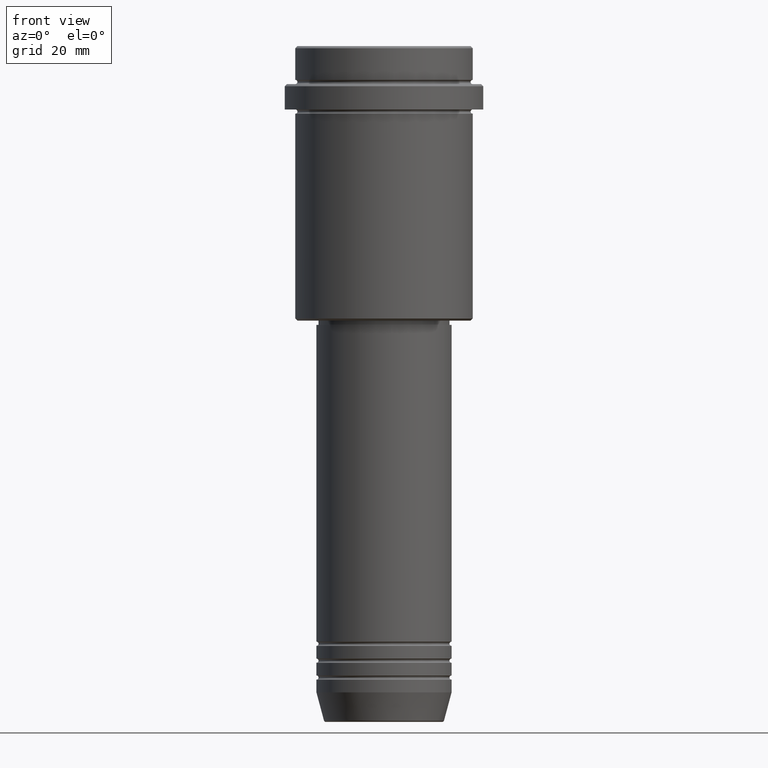
[diagram: clean part render]
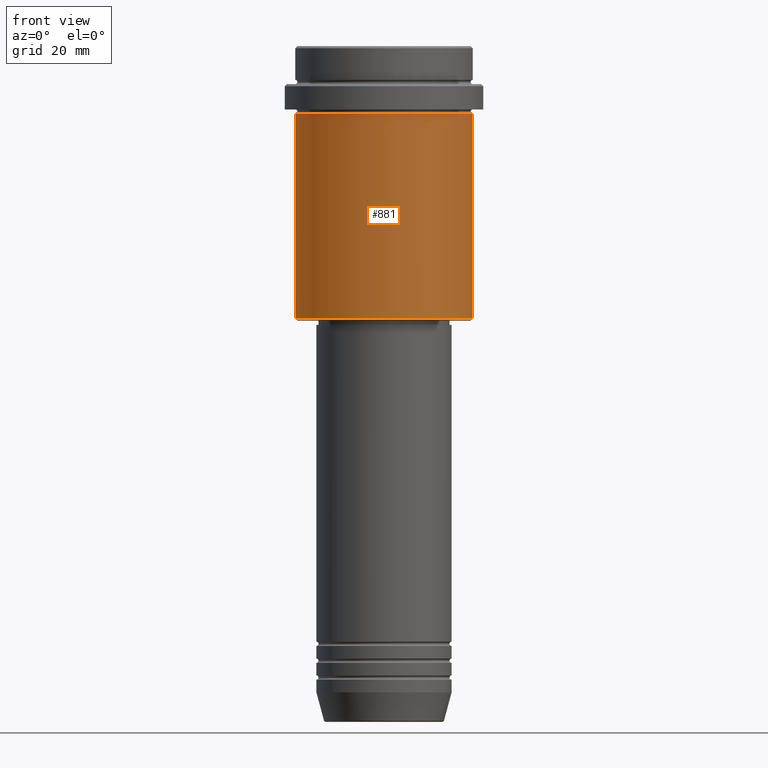
[diagram: same view with one face highlighted and labeled with its STEP entity id]
A machine part, front view. The second image highlights one B-rep face of the part: STEP entity #881.
In plain terms, the highlighted cylindrical surface (partial cylindrical patch) has radius 21 mm, axis along (-0, -0, 1).
Its self-contained STEP definition (entity closure, byte-faithful):
#15 = VERTEX_POINT ( 'NONE', #480 ) ;
#53 = EDGE_CURVE ( 'NONE', #15, #1003, #458, .T. ) ;
#122 = ORIENTED_EDGE ( 'NONE', *, *, #1103, .T. ) ;
#126 = EDGE_LOOP ( 'NONE', ( #777, #1397, #122, #266 ) ) ;
#135 = CARTESIAN_POINT ( 'NONE',  ( 0.000000000000000000, 0.000000000000000000, 0.000000000000000000 ) ) ;
#213 = CARTESIAN_POINT ( 'NONE',  ( 0.000000000000000000, 0.000000000000000000, -16.00000000000000355 ) ) ;
#232 = CIRCLE ( 'NONE', #421, 21.00000000000000000 ) ;
#244 = CYLINDRICAL_SURFACE ( 'NONE', #1171, 21.00000000000000000 ) ;
#266 = ORIENTED_EDGE ( 'NONE', *, *, #53, .F. ) ;
#270 = DIRECTION ( 'NONE',  ( -0.000000000000000000, -0.000000000000000000, 1.000000000000000000 ) ) ;
#293 = LINE ( 'NONE', #748, #534 ) ;
#327 = VERTEX_POINT ( 'NONE', #1133 ) ;
#354 = FACE_OUTER_BOUND ( 'NONE', #126, .T. ) ;
#370 = DIRECTION ( 'NONE',  ( 1.000000000000000000, 0.000000000000000000, 0.000000000000000000 ) ) ;
#388 = LINE ( 'NONE', #592, #1239 ) ;
#421 = AXIS2_PLACEMENT_3D ( 'NONE', #941, #1071, #732 ) ;
#430 = DIRECTION ( 'NONE',  ( -0.000000000000000000, -0.000000000000000000, 1.000000000000000000 ) ) ;
#458 = CIRCLE ( 'NONE', #985, 21.00000000000000000 ) ;
#480 = CARTESIAN_POINT ( 'NONE',  ( -21.00000000000000000, 2.571758278209441661E-15, -16.00000000000000355 ) ) ;
#534 = VECTOR ( 'NONE', #631, 1000.000000000000000 ) ;
#551 = CARTESIAN_POINT ( 'NONE',  ( 21.00000000000000000, 0.000000000000000000, -64.49999999999998579 ) ) ;
#575 = DIRECTION ( 'NONE',  ( -0.000000000000000000, -0.000000000000000000, 1.000000000000000000 ) ) ;
#592 = CARTESIAN_POINT ( 'NONE',  ( 21.00000000000000000, 0.000000000000000000, 0.000000000000000000 ) ) ;
#622 = CARTESIAN_POINT ( 'NONE',  ( 21.00000000000000000, 0.000000000000000000, -16.00000000000000355 ) ) ;
#631 = DIRECTION ( 'NONE',  ( -0.000000000000000000, -0.000000000000000000, 1.000000000000000000 ) ) ;
#732 = DIRECTION ( 'NONE',  ( -1.000000000000000000, 0.000000000000000000, 0.000000000000000000 ) ) ;
#748 = CARTESIAN_POINT ( 'NONE',  ( -21.00000000000000000, 2.571758278209441661E-15, 0.000000000000000000 ) ) ;
#777 = ORIENTED_EDGE ( 'NONE', *, *, #1010, .F. ) ;
#881 = ADVANCED_FACE ( 'NONE', ( #354 ), #244, .T. ) ;
#941 = CARTESIAN_POINT ( 'NONE',  ( 0.000000000000000000, 0.000000000000000000, -64.49999999999998579 ) ) ;
#945 = EDGE_CURVE ( 'NONE', #327, #1313, #232, .T. ) ;
#985 = AXIS2_PLACEMENT_3D ( 'NONE', #213, #430, #1290 ) ;
#1003 = VERTEX_POINT ( 'NONE', #622 ) ;
#1010 = EDGE_CURVE ( 'NONE', #327, #15, #293, .T. ) ;
#1071 = DIRECTION ( 'NONE',  ( -0.000000000000000000, -0.000000000000000000, 1.000000000000000000 ) ) ;
#1103 = EDGE_CURVE ( 'NONE', #1313, #1003, #388, .T. ) ;
#1133 = CARTESIAN_POINT ( 'NONE',  ( -21.00000000000000000, 2.571758278209441661E-15, -64.49999999999998579 ) ) ;
#1171 = AXIS2_PLACEMENT_3D ( 'NONE', #135, #575, #370 ) ;
#1239 = VECTOR ( 'NONE', #270, 1000.000000000000000 ) ;
#1290 = DIRECTION ( 'NONE',  ( 1.000000000000000000, 0.000000000000000000, 0.000000000000000000 ) ) ;
#1313 = VERTEX_POINT ( 'NONE', #551 ) ;
#1397 = ORIENTED_EDGE ( 'NONE', *, *, #945, .T. ) ;